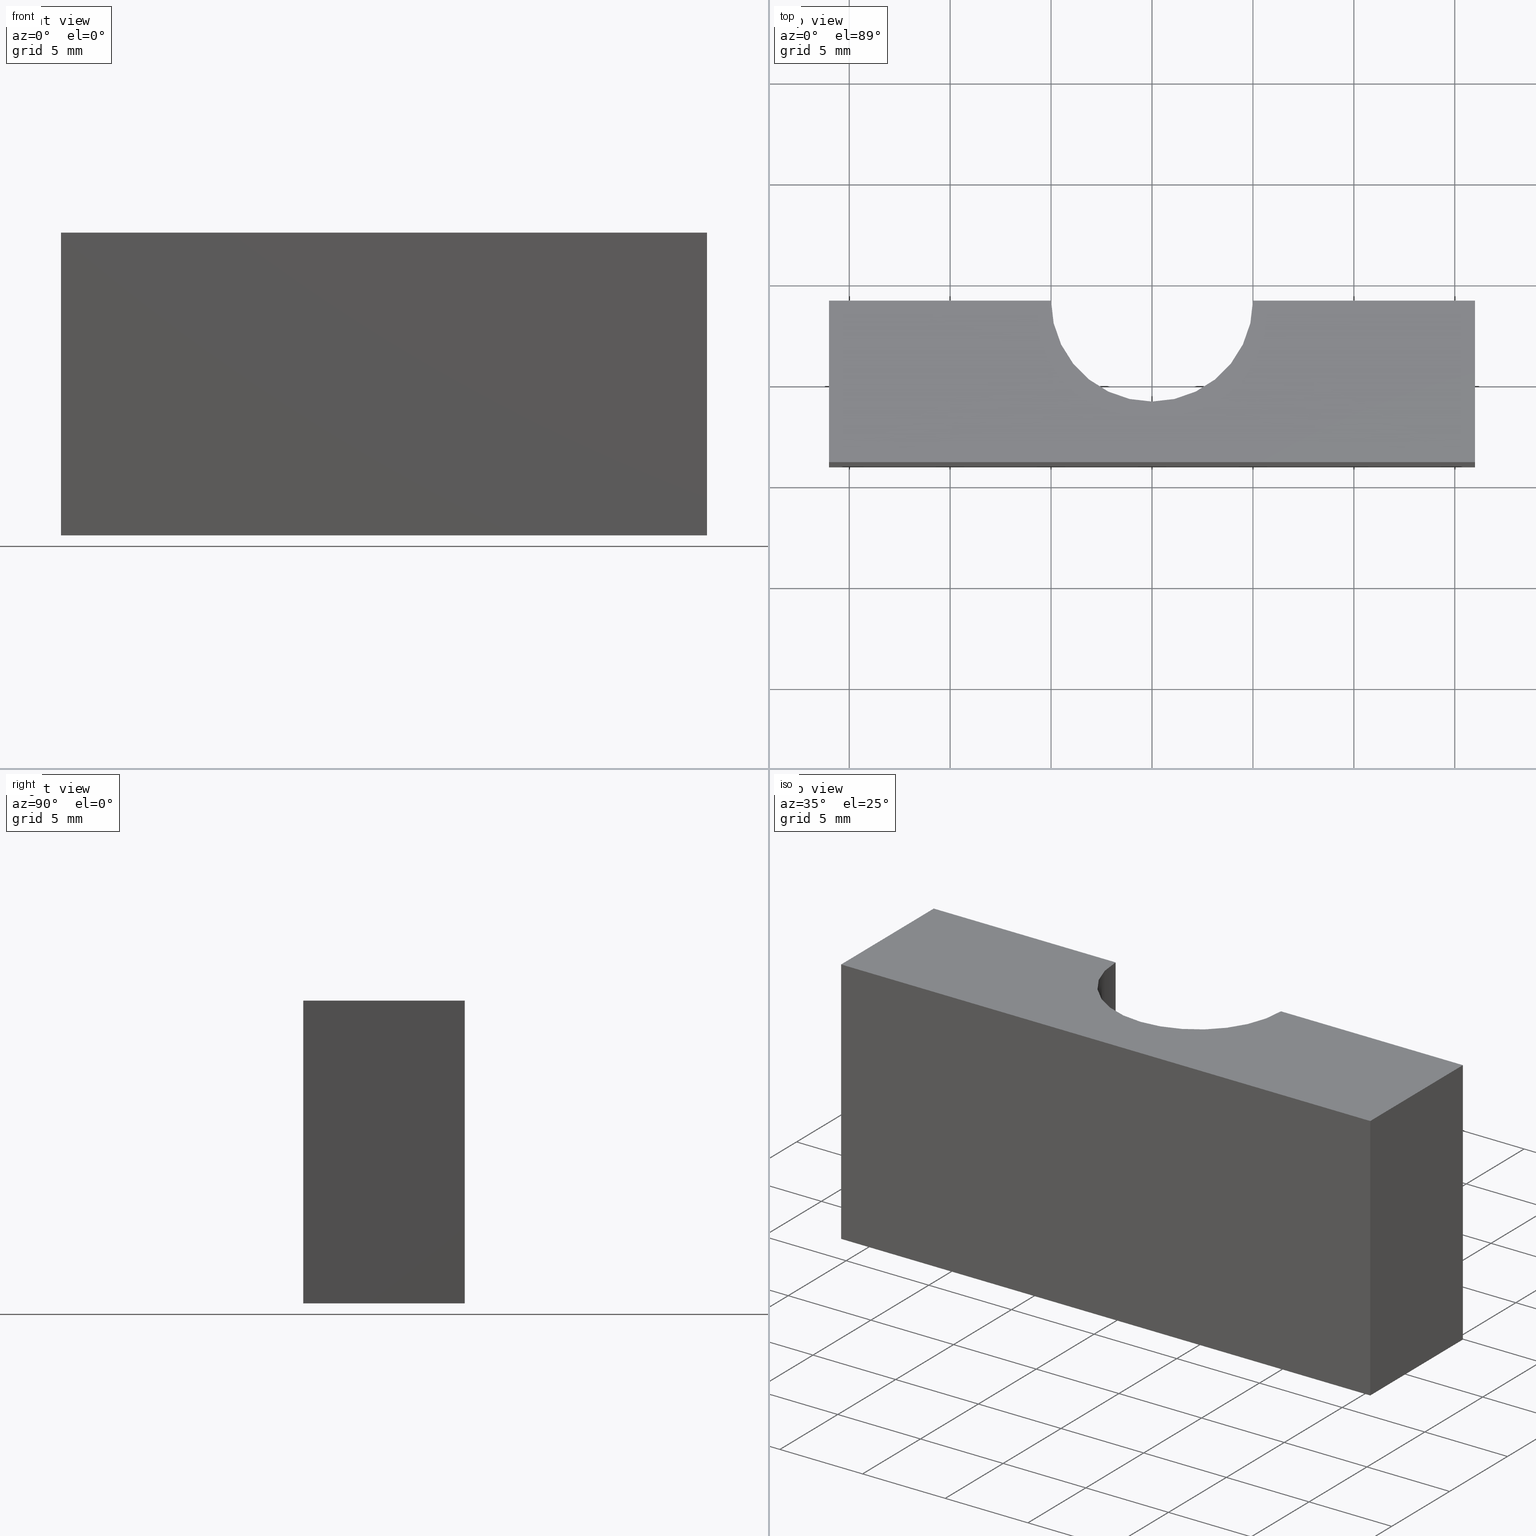
[diagram: canonical four-view strip — front | top / right | iso, engineering-drawing reading convention]
A machine part, canonical four-view strip (front | top / right | iso — engineering-drawing reading convention). The complete STEP part file that produces these views, byte-faithful:
ISO-10303-21;
HEADER;
/* Generated by software containing ST-Developer
 * from STEP Tools, Inc. (www.steptools.com) 
 */

FILE_DESCRIPTION(
/* description */ (''),
/* implementation_level */ '2;1');

FILE_NAME(
/* name */ 'E_3_01_10_01_00_WKZ-0121.stp',
/* time_stamp */ '2025-11-24T11:44:46+01:00',
/* author */ ('d.fischer'),
/* organization */ (''),
/* preprocessor_version */ 'ST-DEVELOPER v20',
/* originating_system */ 'Autodesk Inventor 2025',
/* authorisation */ '');

FILE_SCHEMA (('AUTOMOTIVE_DESIGN { 1 0 10303 214 3 1 1 }'));
ENDSEC;

DATA;
#10=MECHANICAL_DESIGN_GEOMETRIC_PRESENTATION_REPRESENTATION('',(#14,#15),
#261);
#11=SHAPE_REPRESENTATION_RELATIONSHIP('SRR','None',#268,#12);
#12=ADVANCED_BREP_SHAPE_REPRESENTATION('',(#13),#260);
#13=MANIFOLD_SOLID_BREP('Volumenk\X\F6rper1',#148);
#14=STYLED_ITEM('',(#278),#146);
#15=STYLED_ITEM('',(#277),#13);
#16=CYLINDRICAL_SURFACE('',#175,5.);
#17=FACE_OUTER_BOUND('',#25,.T.);
#18=FACE_OUTER_BOUND('',#26,.T.);
#19=FACE_OUTER_BOUND('',#27,.T.);
#20=FACE_OUTER_BOUND('',#28,.T.);
#21=FACE_OUTER_BOUND('',#29,.T.);
#22=FACE_OUTER_BOUND('',#30,.T.);
#23=FACE_OUTER_BOUND('',#31,.T.);
#24=FACE_OUTER_BOUND('',#32,.T.);
#25=EDGE_LOOP('',(#97,#98,#99,#100,#101,#102));
#26=EDGE_LOOP('',(#103,#104,#105,#106));
#27=EDGE_LOOP('',(#107,#108,#109,#110));
#28=EDGE_LOOP('',(#111,#112,#113,#114));
#29=EDGE_LOOP('',(#115,#116,#117,#118));
#30=EDGE_LOOP('',(#119,#120,#121,#122));
#31=EDGE_LOOP('',(#123,#124,#125,#126));
#32=EDGE_LOOP('',(#127,#128,#129,#130,#131,#132));
#33=CIRCLE('',#172,5.);
#34=CIRCLE('',#176,5.);
#35=LINE('',#223,#51);
#36=LINE('',#225,#52);
#37=LINE('',#227,#53);
#38=LINE('',#229,#54);
#39=LINE('',#232,#55);
#40=LINE('',#236,#56);
#41=LINE('',#237,#57);
#42=LINE('',#238,#58);
#43=LINE('',#241,#59);
#44=LINE('',#242,#60);
#45=LINE('',#246,#61);
#46=LINE('',#249,#62);
#47=LINE('',#250,#63);
#48=LINE('',#253,#64);
#49=LINE('',#254,#65);
#50=LINE('',#256,#66);
#51=VECTOR('',#185,10.);
#52=VECTOR('',#186,10.);
#53=VECTOR('',#187,10.);
#54=VECTOR('',#188,10.);
#55=VECTOR('',#191,10.);
#56=VECTOR('',#194,10.);
#57=VECTOR('',#195,10.);
#58=VECTOR('',#196,10.);
#59=VECTOR('',#199,10.);
#60=VECTOR('',#200,10.);
#61=VECTOR('',#205,10.);
#62=VECTOR('',#208,10.);
#63=VECTOR('',#209,10.);
#64=VECTOR('',#212,10.);
#65=VECTOR('',#213,10.);
#66=VECTOR('',#216,10.);
#67=VERTEX_POINT('',#221);
#68=VERTEX_POINT('',#222);
#69=VERTEX_POINT('',#224);
#70=VERTEX_POINT('',#226);
#71=VERTEX_POINT('',#228);
#72=VERTEX_POINT('',#230);
#73=VERTEX_POINT('',#234);
#74=VERTEX_POINT('',#235);
#75=VERTEX_POINT('',#240);
#76=VERTEX_POINT('',#244);
#77=VERTEX_POINT('',#248);
#78=VERTEX_POINT('',#252);
#79=EDGE_CURVE('',#67,#68,#35,.T.);
#80=EDGE_CURVE('',#69,#67,#36,.T.);
#81=EDGE_CURVE('',#70,#69,#37,.T.);
#82=EDGE_CURVE('',#71,#70,#38,.T.);
#83=EDGE_CURVE('',#72,#71,#33,.T.);
#84=EDGE_CURVE('',#68,#72,#39,.T.);
#85=EDGE_CURVE('',#73,#74,#40,.T.);
#86=EDGE_CURVE('',#70,#74,#41,.T.);
#87=EDGE_CURVE('',#73,#69,#42,.T.);
#88=EDGE_CURVE('',#74,#75,#43,.T.);
#89=EDGE_CURVE('',#71,#75,#44,.T.);
#90=EDGE_CURVE('',#75,#76,#34,.T.);
#91=EDGE_CURVE('',#72,#76,#45,.T.);
#92=EDGE_CURVE('',#76,#77,#46,.T.);
#93=EDGE_CURVE('',#68,#77,#47,.T.);
#94=EDGE_CURVE('',#77,#78,#48,.T.);
#95=EDGE_CURVE('',#67,#78,#49,.T.);
#96=EDGE_CURVE('',#78,#73,#50,.T.);
#97=ORIENTED_EDGE('',*,*,#79,.F.);
#98=ORIENTED_EDGE('',*,*,#80,.F.);
#99=ORIENTED_EDGE('',*,*,#81,.F.);
#100=ORIENTED_EDGE('',*,*,#82,.F.);
#101=ORIENTED_EDGE('',*,*,#83,.F.);
#102=ORIENTED_EDGE('',*,*,#84,.F.);
#103=ORIENTED_EDGE('',*,*,#85,.T.);
#104=ORIENTED_EDGE('',*,*,#86,.F.);
#105=ORIENTED_EDGE('',*,*,#81,.T.);
#106=ORIENTED_EDGE('',*,*,#87,.F.);
#107=ORIENTED_EDGE('',*,*,#88,.T.);
#108=ORIENTED_EDGE('',*,*,#89,.F.);
#109=ORIENTED_EDGE('',*,*,#82,.T.);
#110=ORIENTED_EDGE('',*,*,#86,.T.);
#111=ORIENTED_EDGE('',*,*,#90,.T.);
#112=ORIENTED_EDGE('',*,*,#91,.F.);
#113=ORIENTED_EDGE('',*,*,#83,.T.);
#114=ORIENTED_EDGE('',*,*,#89,.T.);
#115=ORIENTED_EDGE('',*,*,#92,.T.);
#116=ORIENTED_EDGE('',*,*,#93,.F.);
#117=ORIENTED_EDGE('',*,*,#84,.T.);
#118=ORIENTED_EDGE('',*,*,#91,.T.);
#119=ORIENTED_EDGE('',*,*,#94,.T.);
#120=ORIENTED_EDGE('',*,*,#95,.F.);
#121=ORIENTED_EDGE('',*,*,#79,.T.);
#122=ORIENTED_EDGE('',*,*,#93,.T.);
#123=ORIENTED_EDGE('',*,*,#96,.T.);
#124=ORIENTED_EDGE('',*,*,#87,.T.);
#125=ORIENTED_EDGE('',*,*,#80,.T.);
#126=ORIENTED_EDGE('',*,*,#95,.T.);
#127=ORIENTED_EDGE('',*,*,#85,.F.);
#128=ORIENTED_EDGE('',*,*,#96,.F.);
#129=ORIENTED_EDGE('',*,*,#94,.F.);
#130=ORIENTED_EDGE('',*,*,#92,.F.);
#131=ORIENTED_EDGE('',*,*,#90,.F.);
#132=ORIENTED_EDGE('',*,*,#88,.F.);
#133=PLANE('',#171);
#134=PLANE('',#173);
#135=PLANE('',#174);
#136=PLANE('',#177);
#137=PLANE('',#178);
#138=PLANE('',#179);
#139=PLANE('',#180);
#140=ADVANCED_FACE('',(#17),#133,.F.);
#141=ADVANCED_FACE('',(#18),#134,.T.);
#142=ADVANCED_FACE('',(#19),#135,.T.);
#143=ADVANCED_FACE('',(#20),#16,.F.);
#144=ADVANCED_FACE('',(#21),#136,.T.);
#145=ADVANCED_FACE('',(#22),#137,.T.);
#146=ADVANCED_FACE('',(#23),#138,.T.);
#147=ADVANCED_FACE('',(#24),#139,.T.);
#148=CLOSED_SHELL('',(#140,#141,#142,#143,#144,#145,#146,#147));
#149=DERIVED_UNIT_ELEMENT(#152,1.);
#150=DERIVED_UNIT_ELEMENT(#263,-3.);
#151=DIMENSIONAL_EXPONENTS(0.,1.,0.,0.,0.,0.,0.);
#152=(
CONVERSION_BASED_UNIT('gram',#154)
MASS_UNIT()
NAMED_UNIT(#151)
);
#153=(
MASS_UNIT()
NAMED_UNIT(*)
SI_UNIT(.KILO.,.GRAM.)
);
#154=MASS_MEASURE_WITH_UNIT(MASS_MEASURE(0.001),#153);
#155=DERIVED_UNIT((#149,#150));
#156=MEASURE_REPRESENTATION_ITEM('density measure',
POSITIVE_RATIO_MEASURE(8.03),#155);
#157=PROPERTY_DEFINITION_REPRESENTATION(#162,#159);
#158=PROPERTY_DEFINITION_REPRESENTATION(#163,#160);
#159=REPRESENTATION('material name',(#161),#260);
#160=REPRESENTATION('density',(#156),#260);
#161=DESCRIPTIVE_REPRESENTATION_ITEM('1.4301','1.4301');
#162=PROPERTY_DEFINITION('material property','material name',#270);
#163=PROPERTY_DEFINITION('material property','density of part',#270);
#164=DATE_TIME_ROLE('creation_date');
#165=APPLIED_DATE_AND_TIME_ASSIGNMENT(#166,#164,(#270));
#166=DATE_AND_TIME(#167,#168);
#167=CALENDAR_DATE(2011,18,10);
#168=LOCAL_TIME(0,0,0.,#169);
#169=COORDINATED_UNIVERSAL_TIME_OFFSET(0,0,.BEHIND.);
#170=AXIS2_PLACEMENT_3D('',#219,#181,#182);
#171=AXIS2_PLACEMENT_3D('',#220,#183,#184);
#172=AXIS2_PLACEMENT_3D('',#231,#189,#190);
#173=AXIS2_PLACEMENT_3D('',#233,#192,#193);
#174=AXIS2_PLACEMENT_3D('',#239,#197,#198);
#175=AXIS2_PLACEMENT_3D('',#243,#201,#202);
#176=AXIS2_PLACEMENT_3D('',#245,#203,#204);
#177=AXIS2_PLACEMENT_3D('',#247,#206,#207);
#178=AXIS2_PLACEMENT_3D('',#251,#210,#211);
#179=AXIS2_PLACEMENT_3D('',#255,#214,#215);
#180=AXIS2_PLACEMENT_3D('',#257,#217,#218);
#181=DIRECTION('axis',(0.,0.,1.));
#182=DIRECTION('refdir',(1.,0.,0.));
#183=DIRECTION('center_axis',(0.,0.,1.));
#184=DIRECTION('ref_axis',(1.,0.,0.));
#185=DIRECTION('',(0.,1.,0.));
#186=DIRECTION('',(1.,1.90819582357449E-16,0.));
#187=DIRECTION('',(0.,-1.,0.));
#188=DIRECTION('',(-1.,-5.04646829375071E-17,0.));
#189=DIRECTION('center_axis',(0.,0.,-1.));
#190=DIRECTION('ref_axis',(1.,-1.11022302462516E-16,0.));
#191=DIRECTION('',(-1.,0.,0.));
#192=DIRECTION('center_axis',(-1.,0.,0.));
#193=DIRECTION('ref_axis',(0.,0.,1.));
#194=DIRECTION('',(0.,1.,0.));
#195=DIRECTION('',(0.,0.,1.));
#196=DIRECTION('',(0.,0.,-1.));
#197=DIRECTION('center_axis',(-5.04646829375071E-17,1.,0.));
#198=DIRECTION('ref_axis',(0.,0.,1.));
#199=DIRECTION('',(1.,5.04646829375071E-17,0.));
#200=DIRECTION('',(0.,0.,1.));
#201=DIRECTION('center_axis',(0.,0.,1.));
#202=DIRECTION('ref_axis',(1.,-1.11022302462516E-16,0.));
#203=DIRECTION('center_axis',(0.,0.,1.));
#204=DIRECTION('ref_axis',(1.,-1.11022302462516E-16,0.));
#205=DIRECTION('',(0.,0.,1.));
#206=DIRECTION('center_axis',(0.,1.,0.));
#207=DIRECTION('ref_axis',(0.,0.,1.));
#208=DIRECTION('',(1.,0.,0.));
#209=DIRECTION('',(0.,0.,1.));
#210=DIRECTION('center_axis',(1.,0.,0.));
#211=DIRECTION('ref_axis',(0.,0.,-1.));
#212=DIRECTION('',(0.,-1.,0.));
#213=DIRECTION('',(0.,0.,1.));
#214=DIRECTION('center_axis',(1.90819582357449E-16,-1.,0.));
#215=DIRECTION('ref_axis',(0.,0.,-1.));
#216=DIRECTION('',(-1.,-1.90819582357449E-16,0.));
#217=DIRECTION('center_axis',(0.,0.,1.));
#218=DIRECTION('ref_axis',(1.,0.,0.));
#219=CARTESIAN_POINT('',(0.,0.,0.));
#220=CARTESIAN_POINT('Origin',(-1.38777878078145E-15,-0.259581799378332,
-7.5));
#221=CARTESIAN_POINT('',(16.,-3.99999999999999,-7.5));
#222=CARTESIAN_POINT('',(16.,4.,-7.5));
#223=CARTESIAN_POINT('',(16.,-3.99999999999999,-7.5));
#224=CARTESIAN_POINT('',(-16.,-4.,-7.5));
#225=CARTESIAN_POINT('',(-16.,-4.,-7.5));
#226=CARTESIAN_POINT('',(-16.,4.,-7.5));
#227=CARTESIAN_POINT('',(-16.,4.,-7.5));
#228=CARTESIAN_POINT('',(-5.,4.,-7.5));
#229=CARTESIAN_POINT('',(-5.,4.,-7.5));
#230=CARTESIAN_POINT('',(5.,4.,-7.5));
#231=CARTESIAN_POINT('Origin',(0.,4.,-7.5));
#232=CARTESIAN_POINT('',(16.,4.,-7.5));
#233=CARTESIAN_POINT('Origin',(-16.,-4.,0.));
#234=CARTESIAN_POINT('',(-16.,-4.,7.5));
#235=CARTESIAN_POINT('',(-16.,4.,7.5));
#236=CARTESIAN_POINT('',(-16.,4.,7.5));
#237=CARTESIAN_POINT('',(-16.,4.,0.));
#238=CARTESIAN_POINT('',(-16.,-4.,0.));
#239=CARTESIAN_POINT('Origin',(-16.,4.,0.));
#240=CARTESIAN_POINT('',(-5.,4.,7.5));
#241=CARTESIAN_POINT('',(-5.,4.,7.5));
#242=CARTESIAN_POINT('',(-5.,4.,0.));
#243=CARTESIAN_POINT('Origin',(0.,4.,0.));
#244=CARTESIAN_POINT('',(5.,4.,7.5));
#245=CARTESIAN_POINT('Origin',(0.,4.,7.5));
#246=CARTESIAN_POINT('',(5.,4.,0.));
#247=CARTESIAN_POINT('Origin',(5.,4.,0.));
#248=CARTESIAN_POINT('',(16.,4.,7.5));
#249=CARTESIAN_POINT('',(16.,4.,7.5));
#250=CARTESIAN_POINT('',(16.,4.,0.));
#251=CARTESIAN_POINT('Origin',(16.,4.,0.));
#252=CARTESIAN_POINT('',(16.,-3.99999999999999,7.5));
#253=CARTESIAN_POINT('',(16.,-3.99999999999999,7.5));
#254=CARTESIAN_POINT('',(16.,-3.99999999999999,0.));
#255=CARTESIAN_POINT('Origin',(16.,-3.99999999999999,0.));
#256=CARTESIAN_POINT('',(-16.,-4.,7.5));
#257=CARTESIAN_POINT('Origin',(-1.38777878078145E-15,-0.259581799378332,
7.5));
#258=UNCERTAINTY_MEASURE_WITH_UNIT(LENGTH_MEASURE(0.01),#262,
'DISTANCE_ACCURACY_VALUE',
'Maximum model space distance between geometric entities at asserted c
onnectivities');
#259=UNCERTAINTY_MEASURE_WITH_UNIT(LENGTH_MEASURE(0.01),#262,
'DISTANCE_ACCURACY_VALUE',
'Maximum model space distance between geometric entities at asserted c
onnectivities');
#260=(
GEOMETRIC_REPRESENTATION_CONTEXT(3)
GLOBAL_UNCERTAINTY_ASSIGNED_CONTEXT((#258))
GLOBAL_UNIT_ASSIGNED_CONTEXT((#262,#264,#265))
REPRESENTATION_CONTEXT('','3D')
);
#261=(
GEOMETRIC_REPRESENTATION_CONTEXT(3)
GLOBAL_UNCERTAINTY_ASSIGNED_CONTEXT((#259))
GLOBAL_UNIT_ASSIGNED_CONTEXT((#262,#264,#265))
REPRESENTATION_CONTEXT('','3D')
);
#262=(
LENGTH_UNIT()
NAMED_UNIT(*)
SI_UNIT(.MILLI.,.METRE.)
);
#263=(
LENGTH_UNIT()
NAMED_UNIT(*)
SI_UNIT(.CENTI.,.METRE.)
);
#264=(
NAMED_UNIT(*)
PLANE_ANGLE_UNIT()
SI_UNIT($,.RADIAN.)
);
#265=(
NAMED_UNIT(*)
SI_UNIT($,.STERADIAN.)
SOLID_ANGLE_UNIT()
);
#266=SHAPE_DEFINITION_REPRESENTATION(#267,#268);
#267=PRODUCT_DEFINITION_SHAPE('',$,#270);
#268=SHAPE_REPRESENTATION('',(#170),#260);
#269=PRODUCT_DEFINITION_CONTEXT('part definition',#274,'design');
#270=PRODUCT_DEFINITION('WKZ-0121','E_3_01_10_01_00_WKZ-0121',#271,#269);
#271=PRODUCT_DEFINITION_FORMATION('',$,#276);
#272=PRODUCT_RELATED_PRODUCT_CATEGORY('E_3_01_10_01_00_WKZ-0121',
'E_3_01_10_01_00_WKZ-0121',(#276));
#273=APPLICATION_PROTOCOL_DEFINITION('international standard',
'automotive_design',2009,#274);
#274=APPLICATION_CONTEXT(
'Core Data for Automotive Mechanical Design Process');
#275=PRODUCT_CONTEXT('part definition',#274,'mechanical');
#276=PRODUCT('WKZ-0121','E_3_01_10_01_00_WKZ-0121',$,(#275));
#277=PRESENTATION_STYLE_ASSIGNMENT((#279));
#278=PRESENTATION_STYLE_ASSIGNMENT((#280));
#279=SURFACE_STYLE_USAGE(.BOTH.,#283);
#280=SURFACE_STYLE_USAGE(.BOTH.,#284);
#281=SURFACE_STYLE_RENDERING_WITH_PROPERTIES($,#291,(#282));
#282=SURFACE_STYLE_TRANSPARENT(0.);
#283=SURFACE_SIDE_STYLE('',(#285,#281));
#284=SURFACE_SIDE_STYLE('',(#286));
#285=SURFACE_STYLE_FILL_AREA(#287);
#286=SURFACE_STYLE_FILL_AREA(#288);
#287=FILL_AREA_STYLE('',(#289));
#288=FILL_AREA_STYLE('',(#290));
#289=FILL_AREA_STYLE_COLOUR('',#291);
#290=FILL_AREA_STYLE_COLOUR('',#292);
#291=COLOUR_RGB('',0.92156862745098,0.92156862745098,0.92156862745098);
#292=COLOUR_RGB('',0.16078431372549,0.16078431372549,0.16078431372549);
ENDSEC;
END-ISO-10303-21;
